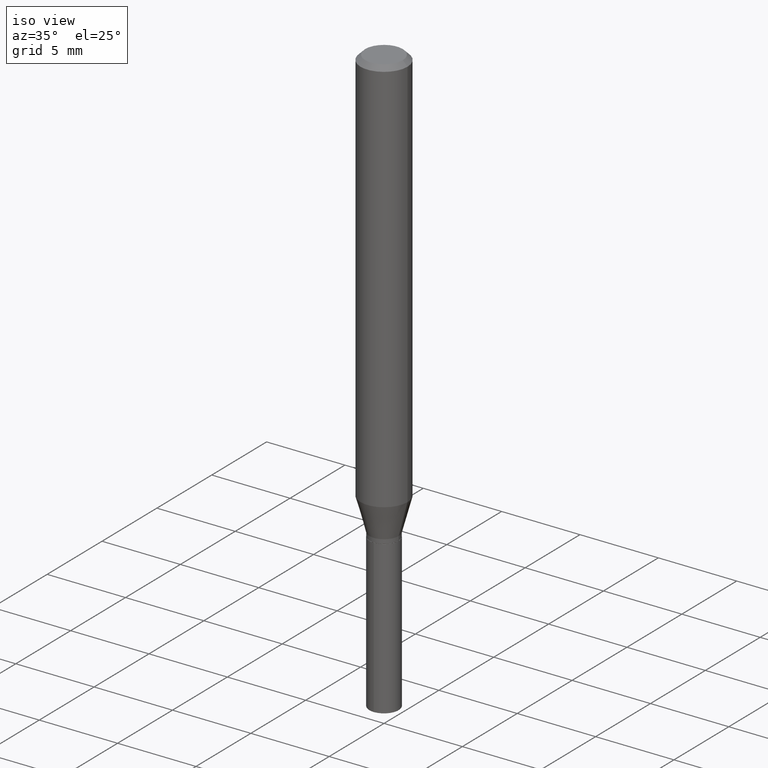
[diagram: clean part render]
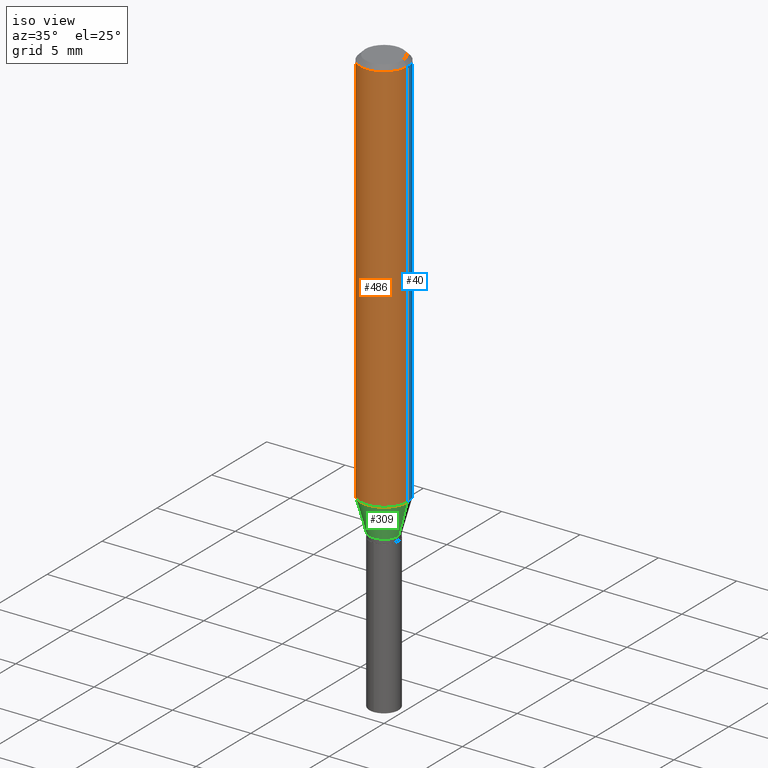
[diagram: same view with three faces highlighted in distinct colors, each labeled with its STEP entity id]
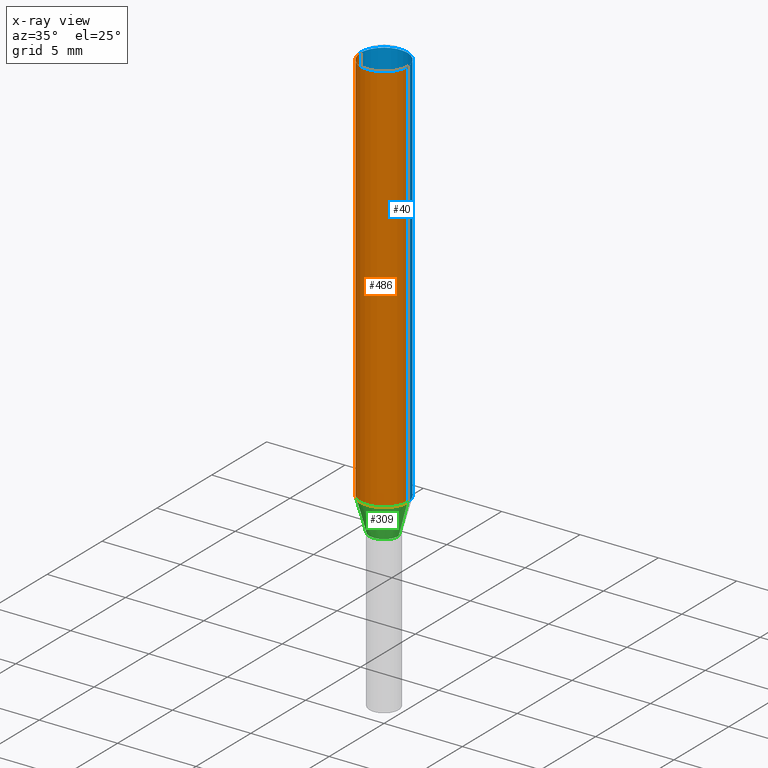
[diagram: x-ray of the same camera — body ghosted, the three highlighted faces saturated]
A machine part, iso view with three faces highlighted in distinct colors.
The next image is the same camera in x-ray (body ghosted, the three faces saturated) — at least one of them is partly hidden behind the body in this view.
Their STEP definitions:

[orange] entity #486 — the highlighted cylindrical surface (edge-blend (fillet) strip) has radius 1.4999 mm, axis along (-0, 0, 1).
#11 = CARTESIAN_POINT ( 'NONE',  ( 0.05905000000000011628, -3.905437893811055071E-15, -1.000461869531592107 ) ) ;
#19 = EDGE_CURVE ( 'NONE', #46, #488, #119, .T. ) ;
#32 = EDGE_CURVE ( 'NONE', #268, #488, #415, .T. ) ;
#46 = VERTEX_POINT ( 'NONE', #11 ) ;
#52 = CARTESIAN_POINT ( 'NONE',  ( -0.05904999999999999832, -1.347588685686368461E-15, -0.01181000000000006871 ) ) ;
#70 = DIRECTION ( 'NONE',  ( -2.445468806185136597E-29, 3.491481338843145583E-15, 1.000000000000000000 ) ) ;
#83 = CARTESIAN_POINT ( 'NONE',  ( 2.888098660104663328E-31, -4.123439461173779030E-17, -0.01181000000000006871 ) ) ;
#92 = AXIS2_PLACEMENT_3D ( 'NONE', #443, #454, #115 ) ;
#115 = DIRECTION ( 'NONE',  ( 1.000000000000000000, -6.982962677686266711E-15, 0.000000000000000000 ) ) ;
#119 = LINE ( 'NONE', #267, #336 ) ;
#129 = AXIS2_PLACEMENT_3D ( 'NONE', #414, #70, #138 ) ;
#138 = DIRECTION ( 'NONE',  ( 1.000000000000000000, -6.982962677686266711E-15, 4.876176775795935793E-29 ) ) ;
#142 = ORIENTED_EDGE ( 'NONE', *, *, #32, .F. ) ;
#212 = VERTEX_POINT ( 'NONE', #436 ) ;
#219 = CYLINDRICAL_SURFACE ( 'NONE', #129, 0.05905000000000006077 ) ;
#224 = DIRECTION ( 'NONE',  ( -2.445468806185136597E-29, 3.491481338843145583E-15, 1.000000000000000000 ) ) ;
#228 = DIRECTION ( 'NONE',  ( 1.000000000000000000, -6.982962677686266711E-15, 0.000000000000000000 ) ) ;
#267 = CARTESIAN_POINT ( 'NONE',  ( 0.05905000000000006077, -4.123439461173744764E-16, 2.879382386107503023E-30 ) ) ;
#268 = VERTEX_POINT ( 'NONE', #52 ) ;
#274 = DIRECTION ( 'NONE',  ( -2.445468806185136877E-29, 3.491481338843145188E-15, 1.000000000000000000 ) ) ;
#299 = ORIENTED_EDGE ( 'NONE', *, *, #475, .T. ) ;
#324 = CARTESIAN_POINT ( 'NONE',  ( -0.05905000000000006077, 4.195754854663395916E-16, -2.904631170795524694E-30 ) ) ;
#332 = VECTOR ( 'NONE', #472, 39.37007874015748143 ) ;
#336 = VECTOR ( 'NONE', #274, 39.37007874015748143 ) ;
#364 = FACE_OUTER_BOUND ( 'NONE', #466, .T. ) ;
#366 = AXIS2_PLACEMENT_3D ( 'NONE', #83, #224, #228 ) ;
#371 = CARTESIAN_POINT ( 'NONE',  ( 0.05904999999999999832, -4.535783407291118600E-16, -0.01181000000000006871 ) ) ;
#385 = ORIENTED_EDGE ( 'NONE', *, *, #451, .F. ) ;
#396 = LINE ( 'NONE', #324, #332 ) ;
#407 = ORIENTED_EDGE ( 'NONE', *, *, #19, .T. ) ;
#414 = CARTESIAN_POINT ( 'NONE',  ( 0.000000000000000000, 0.000000000000000000, 0.000000000000000000 ) ) ;
#415 = CIRCLE ( 'NONE', #366, 0.05904999999999999832 ) ;
#436 = CARTESIAN_POINT ( 'NONE',  ( -0.05905000000000011628, -3.073518462227339869E-15, -1.000461869531592107 ) ) ;
#443 = CARTESIAN_POINT ( 'NONE',  ( 2.446598293717172506E-29, -3.493093947693679756E-15, -1.000461869531592107 ) ) ;
#451 = EDGE_CURVE ( 'NONE', #212, #268, #396, .T. ) ;
#454 = DIRECTION ( 'NONE',  ( -2.445468806185136597E-29, 3.491481338843145583E-15, 1.000000000000000000 ) ) ;
#462 = CIRCLE ( 'NONE', #92, 0.05905000000000011628 ) ;
#466 = EDGE_LOOP ( 'NONE', ( #385, #299, #407, #142 ) ) ;
#472 = DIRECTION ( 'NONE',  ( -2.445468806185136877E-29, 3.491481338843145188E-15, 1.000000000000000000 ) ) ;
#475 = EDGE_CURVE ( 'NONE', #212, #46, #462, .T. ) ;
#486 = ADVANCED_FACE ( 'NONE', ( #364 ), #219, .T. ) ;
#488 = VERTEX_POINT ( 'NONE', #371 ) ;

[blue] entity #40 — the highlighted cylindrical surface (edge-blend (fillet) strip) has radius 1.4999 mm, axis along (-0, 0, 1).
#11 = CARTESIAN_POINT ( 'NONE',  ( 0.05905000000000011628, -3.905437893811055071E-15, -1.000461869531592107 ) ) ;
#12 = ORIENTED_EDGE ( 'NONE', *, *, #410, .T. ) ;
#19 = EDGE_CURVE ( 'NONE', #46, #488, #119, .T. ) ;
#40 = ADVANCED_FACE ( 'NONE', ( #388 ), #346, .T. ) ;
#42 = DIRECTION ( 'NONE',  ( -2.445468806185136597E-29, 3.491481338843145583E-15, 1.000000000000000000 ) ) ;
#46 = VERTEX_POINT ( 'NONE', #11 ) ;
#52 = CARTESIAN_POINT ( 'NONE',  ( -0.05904999999999999832, -1.347588685686368461E-15, -0.01181000000000006871 ) ) ;
#81 = AXIS2_PLACEMENT_3D ( 'NONE', #269, #42, #307 ) ;
#90 = ORIENTED_EDGE ( 'NONE', *, *, #451, .T. ) ;
#119 = LINE ( 'NONE', #267, #336 ) ;
#212 = VERTEX_POINT ( 'NONE', #436 ) ;
#259 = ORIENTED_EDGE ( 'NONE', *, *, #406, .F. ) ;
#267 = CARTESIAN_POINT ( 'NONE',  ( 0.05905000000000006077, -4.123439461173744764E-16, 2.879382386107503023E-30 ) ) ;
#268 = VERTEX_POINT ( 'NONE', #52 ) ;
#269 = CARTESIAN_POINT ( 'NONE',  ( 0.000000000000000000, 0.000000000000000000, 0.000000000000000000 ) ) ;
#274 = DIRECTION ( 'NONE',  ( -2.445468806185136877E-29, 3.491481338843145188E-15, 1.000000000000000000 ) ) ;
#285 = DIRECTION ( 'NONE',  ( 1.000000000000000000, -6.982962677686266711E-15, 0.000000000000000000 ) ) ;
#304 = ORIENTED_EDGE ( 'NONE', *, *, #19, .F. ) ;
#307 = DIRECTION ( 'NONE',  ( 1.000000000000000000, -6.982962677686266711E-15, 4.876176775795935793E-29 ) ) ;
#322 = AXIS2_PLACEMENT_3D ( 'NONE', #358, #438, #285 ) ;
#324 = CARTESIAN_POINT ( 'NONE',  ( -0.05905000000000006077, 4.195754854663395916E-16, -2.904631170795524694E-30 ) ) ;
#326 = DIRECTION ( 'NONE',  ( -2.445468806185136597E-29, 3.491481338843145583E-15, 1.000000000000000000 ) ) ;
#328 = CARTESIAN_POINT ( 'NONE',  ( 2.446598293717172506E-29, -3.493093947693679756E-15, -1.000461869531592107 ) ) ;
#332 = VECTOR ( 'NONE', #472, 39.37007874015748143 ) ;
#336 = VECTOR ( 'NONE', #274, 39.37007874015748143 ) ;
#346 = CYLINDRICAL_SURFACE ( 'NONE', #81, 0.05905000000000006077 ) ;
#358 = CARTESIAN_POINT ( 'NONE',  ( 2.888098660104663328E-31, -4.123439461173779030E-17, -0.01181000000000006871 ) ) ;
#371 = CARTESIAN_POINT ( 'NONE',  ( 0.05904999999999999832, -4.535783407291118600E-16, -0.01181000000000006871 ) ) ;
#388 = FACE_OUTER_BOUND ( 'NONE', #456, .T. ) ;
#393 = AXIS2_PLACEMENT_3D ( 'NONE', #328, #326, #400 ) ;
#396 = LINE ( 'NONE', #324, #332 ) ;
#400 = DIRECTION ( 'NONE',  ( 1.000000000000000000, -6.982962677686266711E-15, 0.000000000000000000 ) ) ;
#406 = EDGE_CURVE ( 'NONE', #488, #268, #409, .T. ) ;
#409 = CIRCLE ( 'NONE', #322, 0.05904999999999999832 ) ;
#410 = EDGE_CURVE ( 'NONE', #46, #212, #477, .T. ) ;
#436 = CARTESIAN_POINT ( 'NONE',  ( -0.05905000000000011628, -3.073518462227339869E-15, -1.000461869531592107 ) ) ;
#438 = DIRECTION ( 'NONE',  ( -2.445468806185136597E-29, 3.491481338843145583E-15, 1.000000000000000000 ) ) ;
#451 = EDGE_CURVE ( 'NONE', #212, #268, #396, .T. ) ;
#456 = EDGE_LOOP ( 'NONE', ( #12, #90, #259, #304 ) ) ;
#472 = DIRECTION ( 'NONE',  ( -2.445468806185136877E-29, 3.491481338843145188E-15, 1.000000000000000000 ) ) ;
#477 = CIRCLE ( 'NONE', #393, 0.05905000000000011628 ) ;
#488 = VERTEX_POINT ( 'NONE', #371 ) ;

[green] entity #309 — the highlighted conical surface has half-angle 15 deg.
#11 = CARTESIAN_POINT ( 'NONE',  ( 0.05905000000000011628, -3.905437893811055071E-15, -1.000461869531592107 ) ) ;
#23 = CIRCLE ( 'NONE', #143, 0.03679999999999999938 ) ;
#35 = CARTESIAN_POINT ( 'NONE',  ( 0.03679999999999999938, -4.039993057175402909E-15, -1.083499999999999908 ) ) ;
#39 = AXIS2_PLACEMENT_3D ( 'NONE', #350, #425, #227 ) ;
#44 = EDGE_CURVE ( 'NONE', #297, #212, #127, .T. ) ;
#45 = DIRECTION ( 'NONE',  ( -2.445468806185136597E-29, 3.491481338843145583E-15, 1.000000000000000000 ) ) ;
#46 = VERTEX_POINT ( 'NONE', #11 ) ;
#47 = VECTOR ( 'NONE', #379, 39.37007874015748854 ) ;
#69 = EDGE_CURVE ( 'NONE', #297, #398, #23, .T. ) ;
#85 = CARTESIAN_POINT ( 'NONE',  ( -0.03679999999999999938, -3.539870580905757435E-15, -1.083499999999999908 ) ) ;
#86 = CARTESIAN_POINT ( 'NONE',  ( -0.03679999999999999938, -3.521540303876831253E-15, -1.083499999999999908 ) ) ;
#92 = AXIS2_PLACEMENT_3D ( 'NONE', #443, #454, #115 ) ;
#115 = DIRECTION ( 'NONE',  ( 1.000000000000000000, -6.982962677686266711E-15, 0.000000000000000000 ) ) ;
#127 = LINE ( 'NONE', #86, #47 ) ;
#143 = AXIS2_PLACEMENT_3D ( 'NONE', #470, #45, #155 ) ;
#154 = FACE_OUTER_BOUND ( 'NONE', #319, .T. ) ;
#155 = DIRECTION ( 'NONE',  ( 1.000000000000000000, -6.982962677686270655E-15, 0.000000000000000000 ) ) ;
#183 = DIRECTION ( 'NONE',  ( 0.2588190451025211836, 1.565188264969622559E-15, 0.9659258262890679791 ) ) ;
#195 = ORIENTED_EDGE ( 'NONE', *, *, #44, .F. ) ;
#212 = VERTEX_POINT ( 'NONE', #436 ) ;
#223 = VECTOR ( 'NONE', #183, 39.37007874015748854 ) ;
#227 = DIRECTION ( 'NONE',  ( 1.000000000000000000, -6.982962677686270655E-15, 0.000000000000000000 ) ) ;
#247 = ORIENTED_EDGE ( 'NONE', *, *, #489, .T. ) ;
#273 = CONICAL_SURFACE ( 'NONE', #39, 0.03679999999999999938, 0.2617993877991499074 ) ;
#278 = CARTESIAN_POINT ( 'NONE',  ( 0.03679999999999999938, -4.039993057175402909E-15, -1.083499999999999908 ) ) ;
#288 = ORIENTED_EDGE ( 'NONE', *, *, #475, .F. ) ;
#289 = LINE ( 'NONE', #35, #223 ) ;
#297 = VERTEX_POINT ( 'NONE', #85 ) ;
#309 = ADVANCED_FACE ( 'NONE', ( #154 ), #273, .T. ) ;
#319 = EDGE_LOOP ( 'NONE', ( #195, #382, #247, #288 ) ) ;
#350 = CARTESIAN_POINT ( 'NONE',  ( 2.649665451501595207E-29, -3.783020030636548117E-15, -1.083499999999999908 ) ) ;
#379 = DIRECTION ( 'NONE',  ( -0.2588190451025211836, 5.211531920934547886E-15, 0.9659258262890679791 ) ) ;
#382 = ORIENTED_EDGE ( 'NONE', *, *, #69, .T. ) ;
#398 = VERTEX_POINT ( 'NONE', #278 ) ;
#425 = DIRECTION ( 'NONE',  ( -2.445468806185136597E-29, 3.491481338843145583E-15, 1.000000000000000000 ) ) ;
#436 = CARTESIAN_POINT ( 'NONE',  ( -0.05905000000000011628, -3.073518462227339869E-15, -1.000461869531592107 ) ) ;
#443 = CARTESIAN_POINT ( 'NONE',  ( 2.446598293717172506E-29, -3.493093947693679756E-15, -1.000461869531592107 ) ) ;
#454 = DIRECTION ( 'NONE',  ( -2.445468806185136597E-29, 3.491481338843145583E-15, 1.000000000000000000 ) ) ;
#462 = CIRCLE ( 'NONE', #92, 0.05905000000000011628 ) ;
#470 = CARTESIAN_POINT ( 'NONE',  ( 2.649665451501595207E-29, -3.783020030636548117E-15, -1.083499999999999908 ) ) ;
#475 = EDGE_CURVE ( 'NONE', #212, #46, #462, .T. ) ;
#489 = EDGE_CURVE ( 'NONE', #398, #46, #289, .T. ) ;